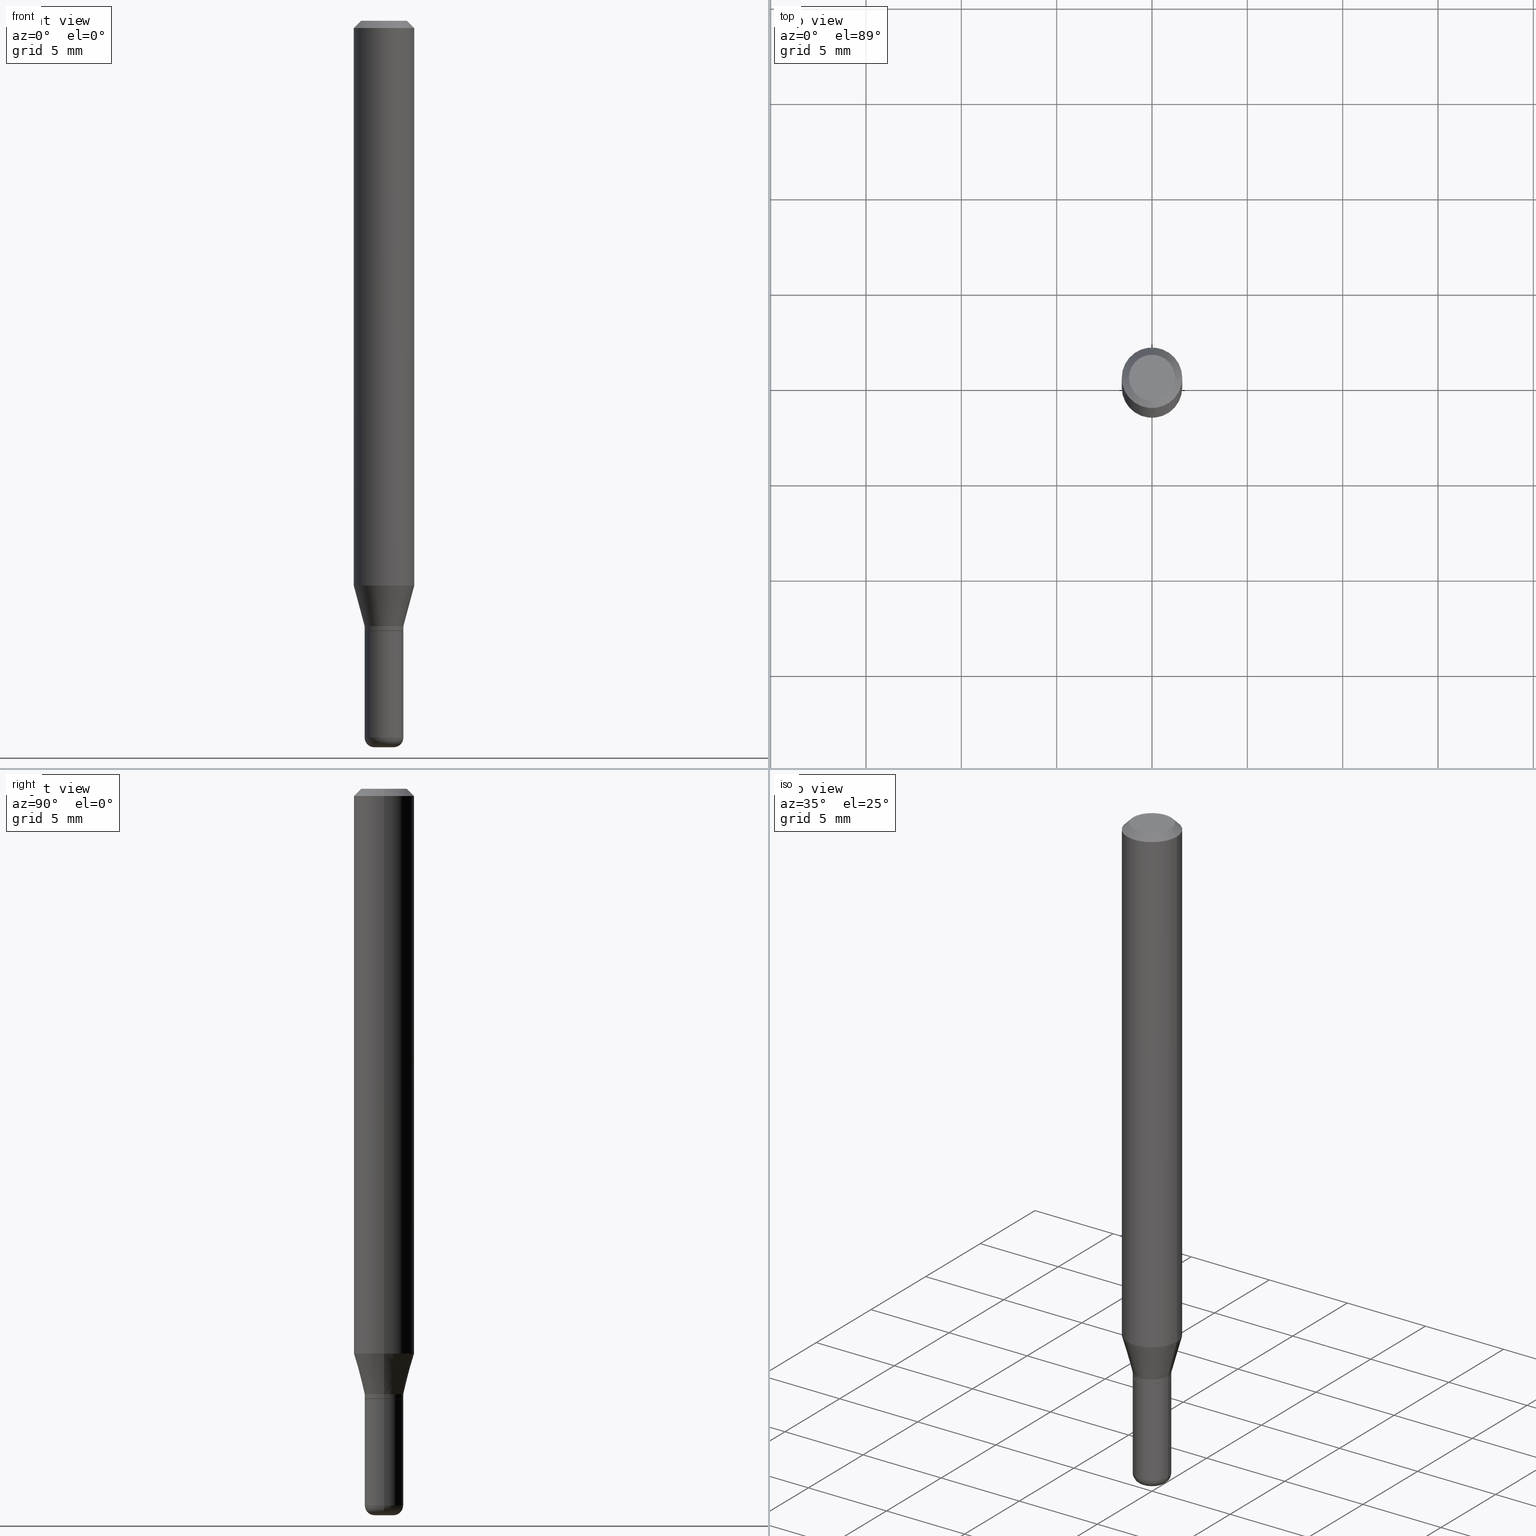
[diagram: canonical four-view strip — front | top / right | iso, engineering-drawing reading convention]
A machine part, canonical four-view strip (front | top / right | iso — engineering-drawing reading convention). The complete STEP part file that produces these views, byte-faithful:
ISO-10303-21;
HEADER;
FILE_DESCRIPTION (( 'STEP AP203' ),
    '1' );
FILE_NAME ('09191.STEP',
    '2024-02-29T23:12:11',
    ( '' ),
    ( '' ),
    'SwSTEP 2.0',
    'SolidWorks 2023',
    '' );
FILE_SCHEMA (( 'CONFIG_CONTROL_DESIGN' ));
ENDSEC;

DATA;
#1 = VECTOR ( 'NONE', #206, 39.37007874015748143 ) ;
#2 = DIRECTION ( 'NONE',  ( -2.445468806185136597E-29, 3.491481338843145583E-15, 1.000000000000000000 ) ) ;
#3 = CYLINDRICAL_SURFACE ( 'NONE', #416, 0.06250000000000000000 ) ;
#4 = CARTESIAN_POINT ( 'NONE',  ( -0.04000000000000000083, -4.080134579249892145E-15, -1.250000000000000000 ) ) ;
#5 = DATE_AND_TIME ( #78, #467 ) ;
#6 = LINE ( 'NONE', #209, #328 ) ;
#7 = FACE_OUTER_BOUND ( 'NONE', #155, .T. ) ;
#8 = PRODUCT_DEFINITION ( 'UNKNOWN', '', #347, #512 ) ;
#9 = CARTESIAN_POINT ( 'NONE',  ( -0.04000000000000003553, -4.499112339911069567E-15, -1.479999999999999982 ) ) ;
#10 = AXIS2_PLACEMENT_3D ( 'NONE', #53, #493, #92 ) ;
#11 = DIRECTION ( 'NONE',  ( 1.000000000000000000, -6.982962677686266711E-15, 4.876176775795936914E-29 ) ) ;
#12 = CC_DESIGN_APPROVAL ( #117, ( #379 ) ) ;
#13 = EDGE_CURVE ( 'NONE', #257, #452, #52, .T. ) ;
#14 = PLANE ( 'NONE',  #193 ) ;
#15 = CONICAL_SURFACE ( 'NONE', #317, 0.03950000000000001427, 0.7853981633972775267 ) ;
#16 = EDGE_CURVE ( 'NONE', #430, #267, #190, .T. ) ;
#17 = DIRECTION ( 'NONE',  ( 0.000000000000000000, 0.000000000000000000, 1.000000000000000000 ) ) ;
#18 = ORIENTED_EDGE ( 'NONE', *, *, #16, .T. ) ;
#19 = CYLINDRICAL_SURFACE ( 'NONE', #371, 0.04000000000000000777 ) ;
#20 = DIRECTION ( 'NONE',  ( -2.445468806185136597E-29, 3.491481338843145583E-15, 1.000000000000000000 ) ) ;
#21 = EDGE_CURVE ( 'NONE', #430, #399, #393, .T. ) ;
#22 = COORDINATED_UNIVERSAL_TIME_OFFSET ( 5, 0, .BEHIND. ) ;
#23 = ORIENTED_EDGE ( 'NONE', *, *, #215, .T. ) ;
#24 = EDGE_LOOP ( 'NONE', ( #28, #434 ) ) ;
#25 = EDGE_CURVE ( 'NONE', #33, #204, #372, .T. ) ;
#26 = DATE_AND_TIME ( #233, #43 ) ;
#27 = LINE ( 'NONE', #198, #309 ) ;
#28 = ORIENTED_EDGE ( 'NONE', *, *, #152, .F. ) ;
#29 = PERSON_AND_ORGANIZATION ( #256, #210 ) ;
#30 = DIRECTION ( 'NONE',  ( 1.000000000000000000, -6.982962677686259611E-15, 0.000000000000000000 ) ) ;
#31 = ORIENTED_EDGE ( 'NONE', *, *, #25, .T. ) ;
#32 = VECTOR ( 'NONE', #308, 39.37007874015748143 ) ;
#33 = VERTEX_POINT ( 'NONE', #266 ) ;
#34 = AXIS2_PLACEMENT_3D ( 'NONE', #344, #461, #96 ) ;
#35 = EDGE_CURVE ( 'NONE', #399, #430, #443, .T. ) ;
#36 = CIRCLE ( 'NONE', #134, 0.02000000000000000389 ) ;
#37 = COORDINATED_UNIVERSAL_TIME_OFFSET ( 5, 0, .BEHIND. ) ;
#38 = CC_DESIGN_DATE_AND_TIME_ASSIGNMENT ( #213, #403, ( #379 ) ) ;
#39 = EDGE_CURVE ( 'NONE', #484, #324, #241, .T. ) ;
#40 = DIRECTION ( 'NONE',  ( -2.445468806185136877E-29, 3.491481338843145188E-15, 1.000000000000000000 ) ) ;
#41 = CARTESIAN_POINT ( 'NONE',  ( -0.04750000000000000749, 3.578768372314221353E-16, 2.731847993664239060E-16 ) ) ;
#42 = CARTESIAN_POINT ( 'NONE',  ( 3.080067961390179490E-29, -4.397520746272941828E-15, -1.259500000000000064 ) ) ;
#43 = LOCAL_TIME ( 18, 12, 11.00000000000000000, #22 ) ;
#44 = AXIS2_PLACEMENT_3D ( 'NONE', #157, #407, #323 ) ;
#45 = SECURITY_CLASSIFICATION_LEVEL ( 'unclassified' ) ;
#46 = FACE_OUTER_BOUND ( 'NONE', #142, .T. ) ;
#47 = ORIENTED_EDGE ( 'NONE', *, *, #397, .T. ) ;
#48 = FACE_OUTER_BOUND ( 'NONE', #465, .T. ) ;
#49 = DIRECTION ( 'NONE',  ( 1.000000000000000000, -6.982962677686257244E-15, 0.000000000000000000 ) ) ;
#50 = EDGE_CURVE ( 'NONE', #355, #33, #234, .T. ) ;
#51 = AXIS2_PLACEMENT_3D ( 'NONE', #191, #501, #356 ) ;
#52 = CIRCLE ( 'NONE', #406, 0.03950000000000001427 ) ;
#53 = CARTESIAN_POINT ( 'NONE',  ( 3.619293833154002365E-29, -5.167392381487854879E-15, -1.479999999999999982 ) ) ;
#54 = CC_DESIGN_PERSON_AND_ORGANIZATION_ASSIGNMENT ( #513, #240, ( #347 ) ) ;
#55 = DIRECTION ( 'NONE',  ( 2.438088387897960049E-29, -3.491481338843145188E-15, -1.000000000000000000 ) ) ;
#56 = DIMENSIONAL_EXPONENTS ( 1.000000000000000000, 0.000000000000000000, 0.000000000000000000, 0.000000000000000000, 0.000000000000000000, 0.000000000000000000, 0.000000000000000000 ) ;
#57 = EDGE_CURVE ( 'NONE', #257, #281, #79, .T. ) ;
#58 = ORIENTED_EDGE ( 'NONE', *, *, #451, .F. ) ;
#59 =( GEOMETRIC_REPRESENTATION_CONTEXT ( 3 ) GLOBAL_UNCERTAINTY_ASSIGNED_CONTEXT ( ( #111 ) ) GLOBAL_UNIT_ASSIGNED_CONTEXT ( ( #473, #107, #195 ) ) REPRESENTATION_CONTEXT ( 'NONE', 'WORKASPACE' ) );
#60 = CARTESIAN_POINT ( 'NONE',  ( 0.000000000000000000, 0.000000000000000000, 0.000000000000000000 ) ) ;
#61 = FACE_OUTER_BOUND ( 'NONE', #77, .T. ) ;
#62 = APPROVAL ( #118, 'UNSPECIFIED' ) ;
#63 = DIRECTION ( 'NONE',  ( -2.445468806185136597E-29, 3.491481338843145583E-15, 1.000000000000000000 ) ) ;
#64 = VERTEX_POINT ( 'NONE', #366 ) ;
#65 = ORIENTED_EDGE ( 'NONE', *, *, #35, .T. ) ;
#66 = FACE_OUTER_BOUND ( 'NONE', #460, .T. ) ;
#67 = PERSON_AND_ORGANIZATION_ROLE ( 'design_owner' ) ;
#68 = ORIENTED_EDGE ( 'NONE', *, *, #334, .T. ) ;
#69 = CARTESIAN_POINT ( 'NONE',  ( -6.680649051745406845E-45, 9.538196290434862081E-31, 2.731847993664263218E-16 ) ) ;
#70 = MECHANICAL_CONTEXT ( 'NONE', #456, 'mechanical' ) ;
#71 = VERTEX_POINT ( 'NONE', #9 ) ;
#72 = CARTESIAN_POINT ( 'NONE',  ( 2.793185071074814439E-16, 0.03999999999999560157, -1.260000000000000453 ) ) ;
#73 = DIRECTION ( 'NONE',  ( -2.445468806185136597E-29, 3.491481338843145583E-15, 1.000000000000000000 ) ) ;
#74 = EDGE_LOOP ( 'NONE', ( #80, #276, #297, #182 ) ) ;
#75 = EDGE_CURVE ( 'NONE', #204, #420, #404, .T. ) ;
#76 = LINE ( 'NONE', #238, #441 ) ;
#77 = EDGE_LOOP ( 'NONE', ( #398, #271, #31, #158 ) ) ;
#78 = CALENDAR_DATE ( 2024, 29, 2 ) ;
#79 = LINE ( 'NONE', #84, #87 ) ;
#80 = ORIENTED_EDGE ( 'NONE', *, *, #350, .T. ) ;
#81 = AXIS2_PLACEMENT_3D ( 'NONE', #428, #229, #388 ) ;
#82 = ORIENTED_EDGE ( 'NONE', *, *, #280, .F. ) ;
#83 = EDGE_CURVE ( 'NONE', #316, #399, #6, .T. ) ;
#84 = CARTESIAN_POINT ( 'NONE',  ( 0.03950000000000001427, -4.675093512710971939E-15, -1.260000000000000231 ) ) ;
#85 = DIRECTION ( 'NONE',  ( -2.445468806185136597E-29, 3.491481338843145583E-15, 1.000000000000000000 ) ) ;
#86 = TOROIDAL_SURFACE ( 'NONE', #10, 0.02000000000000000042, 0.02000000000000003164 ) ;
#87 = VECTOR ( 'NONE', #331, 39.37007874015748143 ) ;
#88 = MANIFOLD_SOLID_BREP ( 'Body-Move/Copy2[2]', #163 ) ;
#89 = ORIENTED_EDGE ( 'NONE', *, *, #215, .F. ) ;
#90 = AXIS2_PLACEMENT_3D ( 'NONE', #42, #211, #49 ) ;
#91 = CYLINDRICAL_SURFACE ( 'NONE', #381, 0.04000000000000001471 ) ;
#92 = DIRECTION ( 'NONE',  ( 1.000000000000000000, -6.982962677686278543E-15, 4.883557194083116264E-29 ) ) ;
#93 = ADVANCED_FACE ( 'NONE', ( #360 ), #435, .T. ) ;
#94 = CARTESIAN_POINT ( 'NONE',  ( 3.056836007731421306E-29, -4.364351673553932471E-15, -1.250000000000000000 ) ) ;
#95 = VECTOR ( 'NONE', #131, 39.37007874015748143 ) ;
#96 = DIRECTION ( 'NONE',  ( 1.000000000000000000, -6.982962677686269077E-15, 0.000000000000000000 ) ) ;
#97 = FACE_OUTER_BOUND ( 'NONE', #391, .T. ) ;
#98 = DIRECTION ( 'NONE',  ( -2.445468806185136597E-29, 3.491481338843145583E-15, 1.000000000000000000 ) ) ;
#99 = APPLICATION_PROTOCOL_DEFINITION ( 'international standard', 'config_control_design', 1994, #456 ) ;
#100 = DIRECTION ( 'NONE',  ( -6.982962677686266711E-15, -1.000000000000000000, 3.491481338843145583E-15 ) ) ;
#101 = ADVANCED_FACE ( 'NONE', ( #165 ), #330, .T. ) ;
#102 = ORIENTED_EDGE ( 'NONE', *, *, #135, .T. ) ;
#103 = CARTESIAN_POINT ( 'NONE',  ( 0.000000000000000000, 0.000000000000000000, 0.000000000000000000 ) ) ;
#104 = EDGE_CURVE ( 'NONE', #71, #64, #447, .T. ) ;
#105 = ORIENTED_EDGE ( 'NONE', *, *, #400, .T. ) ;
#106 = VECTOR ( 'NONE', #503, 39.37007874015748143 ) ;
#107 =( NAMED_UNIT ( * ) PLANE_ANGLE_UNIT ( ) SI_UNIT ( $, .RADIAN. ) );
#108 = DIRECTION ( 'NONE',  ( -2.445468806185136597E-29, 3.491481338843145583E-15, 1.000000000000000000 ) ) ;
#109 = ADVANCED_FACE ( 'NONE', ( #46 ), #150, .T. ) ;
#110 = CARTESIAN_POINT ( 'NONE',  ( 0.000000000000000000, 0.000000000000000000, 0.000000000000000000 ) ) ;
#111 = UNCERTAINTY_MEASURE_WITH_UNIT (LENGTH_MEASURE( 1.000000000000000082E-05 ), #473, 'distance_accuracy_value', 'NONE');
#112 = APPROVAL ( #387, 'UNSPECIFIED' ) ;
#113 = CONICAL_SURFACE ( 'NONE', #160, 0.06250000000000000000, 0.7853981633974488341 ) ;
#114 = LOCAL_TIME ( 18, 12, 11.00000000000000000, #164 ) ;
#115 = ADVANCED_FACE ( 'NONE', ( #48 ), #91, .T. ) ;
#116 = DIRECTION ( 'NONE',  ( -2.445468806185136597E-29, 3.491481338843145583E-15, 1.000000000000000000 ) ) ;
#117 = APPROVAL ( #444, 'UNSPECIFIED' ) ;
#118 = APPROVAL_STATUS ( 'not_yet_approved' ) ;
#119 = PERSON_AND_ORGANIZATION ( #256, #210 ) ;
#120 = CARTESIAN_POINT ( 'NONE',  ( 0.000000000000000000, 0.000000000000000000, 0.000000000000000000 ) ) ;
#121 = PLANE ( 'NONE',  #332 ) ;
#122 = ADVANCED_FACE ( 'NONE', ( #250 ), #368, .T. ) ;
#123 = CARTESIAN_POINT ( 'NONE',  ( 3.081290695793272291E-29, -4.399266486942364120E-15, -1.260000000000000231 ) ) ;
#124 = ORIENTED_EDGE ( 'NONE', *, *, #178, .T. ) ;
#125 = CIRCLE ( 'NONE', #51, 0.06250000000000000000 ) ;
#126 = CLOSED_SHELL ( 'NONE', ( #93, #127, #506, #115, #427, #180 ) ) ;
#127 = ADVANCED_FACE ( 'NONE', ( #411 ), #177, .T. ) ;
#128 = EDGE_LOOP ( 'NONE', ( #216, #65, #18, #287 ) ) ;
#129 = DIRECTION ( 'NONE',  ( 0.7071067811865479058, -7.319954787623257623E-15, -0.7071067811865471286 ) ) ;
#130 = ORIENTED_EDGE ( 'NONE', *, *, #375, .F. ) ;
#131 = DIRECTION ( 'NONE',  ( -2.445468806185136877E-29, 3.491481338843145188E-15, 1.000000000000000000 ) ) ;
#132 = CARTESIAN_POINT ( 'NONE',  ( 3.080067961390179490E-29, -4.397520746272941828E-15, -1.259500000000000064 ) ) ;
#133 = CIRCLE ( 'NONE', #292, 0.02000000000000003511 ) ;
#134 = AXIS2_PLACEMENT_3D ( 'NONE', #197, #226, #230 ) ;
#135 = EDGE_CURVE ( 'NONE', #137, #484, #305, .T. ) ;
#136 = DIRECTION ( 'NONE',  ( -2.445468806185136597E-29, 3.491481338843145583E-15, 1.000000000000000000 ) ) ;
#137 = VERTEX_POINT ( 'NONE', #41 ) ;
#138 = FACE_OUTER_BOUND ( 'NONE', #74, .T. ) ;
#139 = DIRECTION ( 'NONE',  ( 1.000000000000000000, -6.982962677686266711E-15, 0.000000000000000000 ) ) ;
#140 = DIRECTION ( 'NONE',  ( -2.445468806185136597E-29, 3.491481338843145583E-15, 1.000000000000000000 ) ) ;
#141 = CC_DESIGN_PERSON_AND_ORGANIZATION_ASSIGNMENT ( #149, #67, ( #153 ) ) ;
#142 = EDGE_LOOP ( 'NONE', ( #278, #320, #105, #480 ) ) ;
#143 = DIRECTION ( 'NONE',  ( -2.445468806185136597E-29, 3.491481338843145583E-15, 1.000000000000000000 ) ) ;
#144 = APPROVAL_ROLE ( '' ) ;
#145 = PRODUCT_DEFINITION_SHAPE ( 'NONE', 'NONE',  #8 ) ;
#146 = ADVANCED_FACE ( 'NONE', ( #337 ), #3, .T. ) ;
#147 = EDGE_LOOP ( 'NONE', ( #362, #205, #425, #410 ) ) ;
#148 = AXIS2_PLACEMENT_3D ( 'NONE', #490, #302, #422 ) ;
#149 = PERSON_AND_ORGANIZATION ( #256, #210 ) ;
#150 = CONICAL_SURFACE ( 'NONE', #44, 0.06250000000000000000, 0.7853981633974488341 ) ;
#151 = EDGE_LOOP ( 'NONE', ( #299, #236, #498, #263 ) ) ;
#152 = EDGE_CURVE ( 'NONE', #33, #355, #36, .T. ) ;
#153 = PRODUCT ( '09191', '09191', '', ( #70 ) ) ;
#154 = CALENDAR_DATE ( 2024, 29, 2 ) ;
#155 = EDGE_LOOP ( 'NONE', ( #202, #82 ) ) ;
#156 = APPROVAL_DATE_TIME ( #159, #62 ) ;
#157 = CARTESIAN_POINT ( 'NONE',  ( 3.668203209277632395E-31, -5.237222008264614861E-17, -0.01499999999999970281 ) ) ;
#158 = ORIENTED_EDGE ( 'NONE', *, *, #259, .F. ) ;
#159 = DATE_AND_TIME ( #154, #114 ) ;
#160 = AXIS2_PLACEMENT_3D ( 'NONE', #351, #201, #342 ) ;
#161 = DIRECTION ( 'NONE',  ( 7.105427357601001859E-15, 1.000000000000000000, -3.491481338843145583E-15 ) ) ;
#162 = ORIENTED_EDGE ( 'NONE', *, *, #252, .T. ) ;
#163 = CLOSED_SHELL ( 'NONE', ( #306, #122, #109, #101, #207, #188, #146, #462, #429, #357, #289, #242 ) ) ;
#164 = COORDINATED_UNIVERSAL_TIME_OFFSET ( 5, 0, .BEHIND. ) ;
#165 = FACE_OUTER_BOUND ( 'NONE', #243, .T. ) ;
#166 = SHAPE_DEFINITION_REPRESENTATION ( #145, #187 ) ;
#167 = ORIENTED_EDGE ( 'NONE', *, *, #451, .T. ) ;
#168 = EDGE_CURVE ( 'NONE', #316, #281, #511, .T. ) ;
#169 = DIRECTION ( 'NONE',  ( -2.445468806185136597E-29, 3.491481338843145583E-15, 1.000000000000000000 ) ) ;
#170 = CIRCLE ( 'NONE', #454, 0.04000000000000003553 ) ;
#171 = DIRECTION ( 'NONE',  ( -1.000000000000000000, 7.105427357601009747E-15, 0.000000000000000000 ) ) ;
#172 = CC_DESIGN_APPROVAL ( #62, ( #347 ) ) ;
#173 = DIRECTION ( 'NONE',  ( -2.445468806185136877E-29, 3.491481338843145188E-15, 1.000000000000000000 ) ) ;
#174 = DIRECTION ( 'NONE',  ( -2.445468806185136597E-29, 3.491481338843145583E-15, 1.000000000000000000 ) ) ;
#175 = EDGE_LOOP ( 'NONE', ( #186, #167, #176, #439 ) ) ;
#176 = ORIENTED_EDGE ( 'NONE', *, *, #350, .F. ) ;
#177 = CYLINDRICAL_SURFACE ( 'NONE', #453, 0.04000000000000001471 ) ;
#178 = EDGE_CURVE ( 'NONE', #361, #137, #246, .T. ) ;
#179 = DIRECTION ( 'NONE',  ( -2.445468806185136597E-29, 3.491481338843145583E-15, 1.000000000000000000 ) ) ;
#180 = ADVANCED_FACE ( 'NONE', ( #219 ), #14, .F. ) ;
#181 = AXIS2_PLACEMENT_3D ( 'NONE', #94, #497, #426 ) ;
#182 = ORIENTED_EDGE ( 'NONE', *, *, #254, .F. ) ;
#183 = EDGE_LOOP ( 'NONE', ( #358, #367, #508, #321 ) ) ;
#184 = CARTESIAN_POINT ( 'NONE',  ( 2.851487196488747125E-29, -4.071167994173504722E-15, -1.166028856829700366 ) ) ;
#185 = CARTESIAN_POINT ( 'NONE',  ( 3.056836007731421306E-29, -4.364351673553932471E-15, -1.250000000000000000 ) ) ;
#186 = ORIENTED_EDGE ( 'NONE', *, *, #13, .T. ) ;
#187 = ADVANCED_BREP_SHAPE_REPRESENTATION ( '09191', ( #258, #88, #363 ), #59 ) ;
#188 = ADVANCED_FACE ( 'NONE', ( #382 ), #260, .T. ) ;
#189 = CARTESIAN_POINT ( 'NONE',  ( 3.619293833154002365E-29, -5.167392381487854879E-15, -1.479999999999999982 ) ) ;
#190 = LINE ( 'NONE', #346, #478 ) ;
#191 = CARTESIAN_POINT ( 'NONE',  ( 2.851487196488747125E-29, -4.071167994173504722E-15, -1.166028856829700366 ) ) ;
#192 = ORIENTED_EDGE ( 'NONE', *, *, #57, .T. ) ;
#193 = AXIS2_PLACEMENT_3D ( 'NONE', #338, #495, #466 ) ;
#194 = LINE ( 'NONE', #349, #106 ) ;
#195 =( NAMED_UNIT ( * ) SI_UNIT ( $, .STERADIAN. ) SOLID_ANGLE_UNIT ( ) );
#196 = CARTESIAN_POINT ( 'NONE',  ( 3.668203209277632395E-31, -5.237222008264614861E-17, -0.01499999999999970281 ) ) ;
#197 = CARTESIAN_POINT ( 'NONE',  ( 3.668203209277704895E-29, -5.237222008264718177E-15, -1.500000000000000222 ) ) ;
#198 = CARTESIAN_POINT ( 'NONE',  ( 0.06250000000000000000, -4.811533449433669144E-16, -0.01499999999999970281 ) ) ;
#199 = APPROVAL_DATE_TIME ( #26, #112 ) ;
#200 = ORIENTED_EDGE ( 'NONE', *, *, #375, .T. ) ;
#201 = DIRECTION ( 'NONE',  ( 2.445468806185136597E-29, -3.491481338843145583E-15, -1.000000000000000000 ) ) ;
#202 = ORIENTED_EDGE ( 'NONE', *, *, #13, .F. ) ;
#203 = AXIS2_PLACEMENT_3D ( 'NONE', #189, #143, #472 ) ;
#204 = VERTEX_POINT ( 'NONE', #255 ) ;
#205 = ORIENTED_EDGE ( 'NONE', *, *, #318, .T. ) ;
#206 = DIRECTION ( 'NONE',  ( -2.445468806185136877E-29, 3.491481338843145188E-15, 1.000000000000000000 ) ) ;
#207 = ADVANCED_FACE ( 'NONE', ( #459 ), #220, .T. ) ;
#208 = ORIENTED_EDGE ( 'NONE', *, *, #252, .F. ) ;
#209 = CARTESIAN_POINT ( 'NONE',  ( -0.04000000000000000777, 2.842170943040401296E-16, -1.967574036101962859E-30 ) ) ;
#210 = ORGANIZATION ( 'UNSPECIFIED', 'UNSPECIFIED', '' ) ;
#211 = DIRECTION ( 'NONE',  ( -2.445468806185136597E-29, 3.491481338843145583E-15, 1.000000000000000000 ) ) ;
#212 = AXIS2_PLACEMENT_3D ( 'NONE', #120, #85, #288 ) ;
#213 = DATE_AND_TIME ( #319, #274 ) ;
#214 = DIRECTION ( 'NONE',  ( -2.438088387897960049E-29, 3.491481338843145188E-15, 1.000000000000000000 ) ) ;
#215 = EDGE_CURVE ( 'NONE', #267, #380, #125, .T. ) ;
#216 = ORIENTED_EDGE ( 'NONE', *, *, #334, .F. ) ;
#217 = DIRECTION ( 'NONE',  ( 1.000000000000000000, -6.982962677686259611E-15, 0.000000000000000000 ) ) ;
#218 = DIRECTION ( 'NONE',  ( -1.000000000000000000, 6.982962677686265922E-15, -4.876176775795935793E-29 ) ) ;
#219 = FACE_OUTER_BOUND ( 'NONE', #24, .T. ) ;
#220 = CONICAL_SURFACE ( 'NONE', #181, 0.04000000000000000083, 0.2617993877991495189 ) ;
#221 = CIRCLE ( 'NONE', #412, 0.06250000000000000000 ) ;
#222 = APPROVAL_PERSON_ORGANIZATION ( #119, #117, #365 ) ;
#223 = EDGE_CURVE ( 'NONE', #361, #324, #27, .T. ) ;
#224 = DIRECTION ( 'NONE',  ( 1.000000000000000000, -6.982962677686266711E-15, 4.852736867747365086E-29 ) ) ;
#225 = DIRECTION ( 'NONE',  ( -1.000000000000000000, 6.982962677686265922E-15, -4.876176775795935793E-29 ) ) ;
#226 = DIRECTION ( 'NONE',  ( -2.445468806185136597E-29, 3.491481338843145583E-15, 1.000000000000000000 ) ) ;
#227 = CARTESIAN_POINT ( 'NONE',  ( 3.081290695793272291E-29, -4.399266486942364120E-15, -1.260000000000000231 ) ) ;
#228 = PERSON_AND_ORGANIZATION ( #256, #210 ) ;
#229 = DIRECTION ( 'NONE',  ( -2.445468806185136597E-29, 3.491481338843145583E-15, 1.000000000000000000 ) ) ;
#230 = DIRECTION ( 'NONE',  ( 1.000000000000000000, -6.982962677686282488E-15, 0.000000000000000000 ) ) ;
#231 = ORIENTED_EDGE ( 'NONE', *, *, #259, .T. ) ;
#232 = CIRCLE ( 'NONE', #518, 0.04750000000000000749 ) ;
#233 = CALENDAR_DATE ( 2024, 29, 2 ) ;
#234 = CIRCLE ( 'NONE', #450, 0.02000000000000000389 ) ;
#235 = COORDINATED_UNIVERSAL_TIME_OFFSET ( 5, 0, .BEHIND. ) ;
#236 = ORIENTED_EDGE ( 'NONE', *, *, #104, .T. ) ;
#237 = LINE ( 'NONE', #437, #449 ) ;
#238 = CARTESIAN_POINT ( 'NONE',  ( 0.06250000000000000000, -4.364351673553916694E-16, 3.047610484872459871E-30 ) ) ;
#239 = CIRCLE ( 'NONE', #90, 0.04000000000000001471 ) ;
#240 = PERSON_AND_ORGANIZATION_ROLE ( 'design_supplier' ) ;
#241 = CIRCLE ( 'NONE', #502, 0.06250000000000000000 ) ;
#242 = ADVANCED_FACE ( 'NONE', ( #66 ), #19, .T. ) ;
#243 = EDGE_LOOP ( 'NONE', ( #23, #445, #348, #329 ) ) ;
#244 = DIRECTION ( 'NONE',  ( -0.2588190451025207950, 5.211531920934546309E-15, 0.9659258262890682012 ) ) ;
#245 = CARTESIAN_POINT ( 'NONE',  ( -0.04000000000000001471, 2.842170943040401789E-16, -1.967574036101963210E-30 ) ) ;
#246 = CIRCLE ( 'NONE', #510, 0.04750000000000000749 ) ;
#247 = AXIS2_PLACEMENT_3D ( 'NONE', #432, #136, #394 ) ;
#248 = DIRECTION ( 'NONE',  ( 1.000000000000000000, -6.982962677686278543E-15, 4.883557194083116264E-29 ) ) ;
#249 = CC_DESIGN_PERSON_AND_ORGANIZATION_ASSIGNMENT ( #322, #402, ( #379 ) ) ;
#250 = FACE_OUTER_BOUND ( 'NONE', #175, .T. ) ;
#251 = AXIS2_PLACEMENT_3D ( 'NONE', #72, #262, #225 ) ;
#252 = EDGE_CURVE ( 'NONE', #137, #361, #232, .T. ) ;
#253 = PLANE ( 'NONE',  #390 ) ;
#254 = EDGE_CURVE ( 'NONE', #281, #430, #353, .T. ) ;
#255 = CARTESIAN_POINT ( 'NONE',  ( 0.04000000000000003553, -5.446710888595306494E-15, -1.479999999999999982 ) ) ;
#256 = PERSON ( 'UNSPECIFIED', 'UNSPECIFIED', 'UNSPECIFIED', ('UNSPECIFIED'), ('UNSPECIFIED'), ('UNSPECIFIED') ) ;
#257 = VERTEX_POINT ( 'NONE', #265 ) ;
#258 = MANIFOLD_SOLID_BREP ( 'Body-Move/Copy2[1]', #126 ) ;
#259 = EDGE_CURVE ( 'NONE', #71, #204, #494, .T. ) ;
#260 = CONICAL_SURFACE ( 'NONE', #339, 0.04000000000000000083, 0.2617993877991495189 ) ;
#261 = FACE_OUTER_BOUND ( 'NONE', #509, .T. ) ;
#262 = DIRECTION ( 'NONE',  ( 2.438088387897960049E-29, -3.491481338843145188E-15, -1.000000000000000000 ) ) ;
#263 = ORIENTED_EDGE ( 'NONE', *, *, #75, .F. ) ;
#264 = DIRECTION ( 'NONE',  ( -2.445468806185136597E-29, 3.491481338843145583E-15, 1.000000000000000000 ) ) ;
#265 = CARTESIAN_POINT ( 'NONE',  ( 0.03950000000000001427, -4.675093512710971939E-15, -1.260000000000000231 ) ) ;
#266 = CARTESIAN_POINT ( 'NONE',  ( 0.02000000000000000389, -5.376881261818443984E-15, -1.500000000000000222 ) ) ;
#267 = VERTEX_POINT ( 'NONE', #457 ) ;
#268 = DIRECTION ( 'NONE',  ( -2.445468806185136597E-29, 3.491481338843145583E-15, 1.000000000000000000 ) ) ;
#269 = LENGTH_MEASURE_WITH_UNIT ( LENGTH_MEASURE( 0.02539999999999999897 ), #464 );
#270 = CARTESIAN_POINT ( 'NONE',  ( -6.680649051745406845E-45, 9.538196290434862081E-31, 2.731847993664263218E-16 ) ) ;
#271 = ORIENTED_EDGE ( 'NONE', *, *, #50, .T. ) ;
#272 = CC_DESIGN_PERSON_AND_ORGANIZATION_ASSIGNMENT ( #440, #327, ( #347 ) ) ;
#273 = APPROVAL_PERSON_ORGANIZATION ( #228, #112, #144 ) ;
#274 = LOCAL_TIME ( 18, 12, 11.00000000000000000, #37 ) ;
#275 = DATE_AND_TIME ( #475, #326 ) ;
#276 = ORIENTED_EDGE ( 'NONE', *, *, #83, .T. ) ;
#277 = APPLICATION_PROTOCOL_DEFINITION ( 'international standard', 'config_control_design', 1994, #486 ) ;
#278 = ORIENTED_EDGE ( 'NONE', *, *, #178, .F. ) ;
#279 = APPROVAL_DATE_TIME ( #5, #117 ) ;
#280 = EDGE_CURVE ( 'NONE', #452, #257, #378, .T. ) ;
#281 = VERTEX_POINT ( 'NONE', #314 ) ;
#282 = CIRCLE ( 'NONE', #483, 0.04000000000000000083 ) ;
#283 = AXIS2_PLACEMENT_3D ( 'NONE', #487, #2, #248 ) ;
#284 = ORIENTED_EDGE ( 'NONE', *, *, #280, .T. ) ;
#285 = DIRECTION ( 'NONE',  ( 1.000000000000000000, -6.982962677686282488E-15, 0.000000000000000000 ) ) ;
#286 = LINE ( 'NONE', #4, #401 ) ;
#287 = ORIENTED_EDGE ( 'NONE', *, *, #488, .F. ) ;
#288 = DIRECTION ( 'NONE',  ( 1.000000000000000000, -6.982962677686266711E-15, 4.876176775795935793E-29 ) ) ;
#289 = ADVANCED_FACE ( 'NONE', ( #261 ), #15, .T. ) ;
#290 = APPROVAL_ROLE ( '' ) ;
#291 = CARTESIAN_POINT ( 'NONE',  ( 0.04000000000000001471, -2.793185071074507769E-16, 1.950470710318375438E-30 ) ) ;
#292 = AXIS2_PLACEMENT_3D ( 'NONE', #369, #161, #171 ) ;
#293 = CC_DESIGN_APPROVAL ( #112, ( #8 ) ) ;
#294 = CARTESIAN_POINT ( 'NONE',  ( 3.081290695793272291E-29, -4.399266486942364120E-15, -1.260000000000000231 ) ) ;
#295 = EDGE_CURVE ( 'NONE', #204, #71, #170, .T. ) ;
#296 = CARTESIAN_POINT ( 'NONE',  ( 0.04750000000000000749, -4.035134999187568762E-16, 2.731847993664288856E-16 ) ) ;
#297 = ORIENTED_EDGE ( 'NONE', *, *, #21, .F. ) ;
#298 = DIRECTION ( 'NONE',  ( -2.445468806185136597E-29, 3.491481338843145583E-15, 1.000000000000000000 ) ) ;
#299 = ORIENTED_EDGE ( 'NONE', *, *, #295, .T. ) ;
#300 = EDGE_CURVE ( 'NONE', #380, #484, #194, .T. ) ;
#301 = CARTESIAN_POINT ( 'NONE',  ( 0.04000000000000000777, -2.793185071074507276E-16, 1.950470710318374738E-30 ) ) ;
#302 = DIRECTION ( 'NONE',  ( -2.445468806185136597E-29, 3.491481338843145583E-15, 1.000000000000000000 ) ) ;
#303 = DIRECTION ( 'NONE',  ( 1.000000000000000000, -6.982962677686271444E-15, 0.000000000000000000 ) ) ;
#304 = ORIENTED_EDGE ( 'NONE', *, *, #35, .F. ) ;
#305 = LINE ( 'NONE', #336, #32 ) ;
#306 = ADVANCED_FACE ( 'NONE', ( #138 ), #311, .T. ) ;
#307 = CARTESIAN_POINT ( 'NONE',  ( -0.03950000000000001427, -4.115952879143013491E-15, -1.260000000000000231 ) ) ;
#308 = DIRECTION ( 'NONE',  ( -0.7071067811865479058, 2.468850131082261005E-15, -0.7071067811865471286 ) ) ;
#309 = VECTOR ( 'NONE', #129, 39.37007874015748143 ) ;
#310 = CARTESIAN_POINT ( 'NONE',  ( 3.619293833154002365E-29, -5.167392381487854879E-15, -1.479999999999999982 ) ) ;
#311 = CYLINDRICAL_SURFACE ( 'NONE', #463, 0.04000000000000000777 ) ;
#312 = DIRECTION ( 'NONE',  ( 1.000000000000000000, -6.982962677686269077E-15, 0.000000000000000000 ) ) ;
#313 = CC_DESIGN_PERSON_AND_ORGANIZATION_ASSIGNMENT ( #354, #315, ( #8 ) ) ;
#314 = CARTESIAN_POINT ( 'NONE',  ( 0.04000000000000001471, -4.676839253380393443E-15, -1.259500000000000064 ) ) ;
#315 = PERSON_AND_ORGANIZATION_ROLE ( 'creator' ) ;
#316 = VERTEX_POINT ( 'NONE', #409 ) ;
#317 = AXIS2_PLACEMENT_3D ( 'NONE', #227, #63, #468 ) ;
#318 = EDGE_CURVE ( 'NONE', #355, #71, #133, .T. ) ;
#319 = CALENDAR_DATE ( 2024, 29, 2 ) ;
#320 = ORIENTED_EDGE ( 'NONE', *, *, #223, .T. ) ;
#321 = ORIENTED_EDGE ( 'NONE', *, *, #39, .F. ) ;
#322 = PERSON_AND_ORGANIZATION ( #256, #210 ) ;
#323 = DIRECTION ( 'NONE',  ( -1.000000000000000000, 6.982962677686266711E-15, 0.000000000000000000 ) ) ;
#324 = VERTEX_POINT ( 'NONE', #517 ) ;
#325 = AXIS2_PLACEMENT_3D ( 'NONE', #132, #140, #376 ) ;
#326 = LOCAL_TIME ( 18, 12, 11.00000000000000000, #235 ) ;
#327 = PERSON_AND_ORGANIZATION_ROLE ( 'creator' ) ;
#328 = VECTOR ( 'NONE', #40, 39.37007874015748143 ) ;
#329 = ORIENTED_EDGE ( 'NONE', *, *, #385, .F. ) ;
#330 = CYLINDRICAL_SURFACE ( 'NONE', #212, 0.06250000000000000000 ) ;
#331 = DIRECTION ( 'NONE',  ( 0.7071067811864267805, -2.468850131080992517E-15, 0.7071067811866682540 ) ) ;
#332 = AXIS2_PLACEMENT_3D ( 'NONE', #294, #214, #333 ) ;
#333 = DIRECTION ( 'NONE',  ( 1.000000000000000000, -6.982962677686265922E-15, 4.876176775795935793E-29 ) ) ;
#334 = EDGE_CURVE ( 'NONE', #399, #380, #286, .T. ) ;
#335 = DIRECTION ( 'NONE',  ( -2.445468806185136597E-29, 3.491481338843145583E-15, 1.000000000000000000 ) ) ;
#336 = CARTESIAN_POINT ( 'NONE',  ( -0.06250000000000000000, 3.840629472727455270E-16, -0.01499999999999970281 ) ) ;
#337 = FACE_OUTER_BOUND ( 'NONE', #183, .T. ) ;
#338 = CARTESIAN_POINT ( 'NONE',  ( 3.582686580359766038E-29, -5.359686688179453325E-15, -1.500000000000000222 ) ) ;
#339 = AXIS2_PLACEMENT_3D ( 'NONE', #185, #298, #303 ) ;
#340 = EDGE_LOOP ( 'NONE', ( #485, #208, #102, #359 ) ) ;
#341 = DIRECTION ( 'NONE',  ( 1.000000000000000000, -6.982962677686269077E-15, 0.000000000000000000 ) ) ;
#342 = DIRECTION ( 'NONE',  ( -1.000000000000000000, 6.982962677686266711E-15, 0.000000000000000000 ) ) ;
#343 = ORIENTED_EDGE ( 'NONE', *, *, #104, .F. ) ;
#344 = CARTESIAN_POINT ( 'NONE',  ( 3.081290695793272291E-29, -4.399266486942364120E-15, -1.260000000000000231 ) ) ;
#345 = DIRECTION ( 'NONE',  ( -0.7071067811864267805, 7.493145998869918709E-15, 0.7071067811866682540 ) ) ;
#346 = CARTESIAN_POINT ( 'NONE',  ( 0.04000000000000000083, -4.643670180661383298E-15, -1.250000000000000000 ) ) ;
#347 = PRODUCT_DEFINITION_FORMATION_WITH_SPECIFIED_SOURCE ( 'ANY', '', #153, .NOT_KNOWN. ) ;
#348 = ORIENTED_EDGE ( 'NONE', *, *, #400, .F. ) ;
#349 = CARTESIAN_POINT ( 'NONE',  ( -0.06250000000000000000, 4.440892098500626162E-16, -3.074334431409316114E-30 ) ) ;
#350 = EDGE_CURVE ( 'NONE', #281, #316, #239, .T. ) ;
#351 = CARTESIAN_POINT ( 'NONE',  ( 3.668203209277632395E-31, -5.237222008264614861E-17, -0.01499999999999970281 ) ) ;
#352 = DIRECTION ( 'NONE',  ( 1.000000000000000000, -6.982962677686272233E-15, 0.000000000000000000 ) ) ;
#353 = LINE ( 'NONE', #301, #95 ) ;
#354 = PERSON_AND_ORGANIZATION ( #256, #210 ) ;
#355 = VERTEX_POINT ( 'NONE', #448 ) ;
#356 = DIRECTION ( 'NONE',  ( 1.000000000000000000, -6.982962677686262766E-15, 0.000000000000000000 ) ) ;
#357 = ADVANCED_FACE ( 'NONE', ( #7 ), #121, .F. ) ;
#358 = ORIENTED_EDGE ( 'NONE', *, *, #300, .F. ) ;
#359 = ORIENTED_EDGE ( 'NONE', *, *, #39, .T. ) ;
#360 = FACE_OUTER_BOUND ( 'NONE', #147, .T. ) ;
#361 = VERTEX_POINT ( 'NONE', #296 ) ;
#362 = ORIENTED_EDGE ( 'NONE', *, *, #152, .T. ) ;
#363 = AXIS2_PLACEMENT_3D ( 'NONE', #110, #17, #431 ) ;
#364 = DIRECTION ( 'NONE',  ( 1.000000000000000000, -6.982962677686266711E-15, 4.876176775795935793E-29 ) ) ;
#365 = APPROVAL_ROLE ( '' ) ;
#366 = CARTESIAN_POINT ( 'NONE',  ( -0.04000000000000000083, -4.499112339911069567E-15, -1.260000000000000231 ) ) ;
#367 = ORIENTED_EDGE ( 'NONE', *, *, #488, .T. ) ;
#368 = CONICAL_SURFACE ( 'NONE', #474, 0.03950000000000001427, 0.7853981633972775267 ) ;
#369 = CARTESIAN_POINT ( 'NONE',  ( -0.02000000000000000042, -5.025283834335834715E-15, -1.479999999999999982 ) ) ;
#370 = EDGE_LOOP ( 'NONE', ( #162, #124 ) ) ;
#371 = AXIS2_PLACEMENT_3D ( 'NONE', #60, #499, #392 ) ;
#372 = CIRCLE ( 'NONE', #415, 0.02000000000000003511 ) ;
#373 = CARTESIAN_POINT ( 'NONE',  ( 0.000000000000000000, 0.000000000000000000, 0.000000000000000000 ) ) ;
#374 = CARTESIAN_POINT ( 'NONE',  ( 0.04000000000000000083, -4.678584994049814947E-15, -1.260000000000000231 ) ) ;
#375 = EDGE_CURVE ( 'NONE', #64, #420, #421, .T. ) ;
#376 = DIRECTION ( 'NONE',  ( 1.000000000000000000, -6.982962677686257244E-15, 0.000000000000000000 ) ) ;
#377 = DIRECTION ( 'NONE',  ( -2.445468806185136597E-29, 3.491481338843145583E-15, 1.000000000000000000 ) ) ;
#378 = CIRCLE ( 'NONE', #34, 0.03950000000000001427 ) ;
#379 = SECURITY_CLASSIFICATION ( '', '', #45 ) ;
#380 = VERTEX_POINT ( 'NONE', #438 ) ;
#381 = AXIS2_PLACEMENT_3D ( 'NONE', #373, #419, #11 ) ;
#382 = FACE_OUTER_BOUND ( 'NONE', #128, .T. ) ;
#383 = CARTESIAN_POINT ( 'NONE',  ( 0.04000000000000000083, -4.643670180661383298E-15, -1.250000000000000000 ) ) ;
#384 = CARTESIAN_POINT ( 'NONE',  ( 3.081290695793272291E-29, -4.399266486942364120E-15, -1.260000000000000231 ) ) ;
#385 = EDGE_CURVE ( 'NONE', #267, #324, #76, .T. ) ;
#386 = DIRECTION ( 'NONE',  ( 1.000000000000000000, -6.982962677686277755E-15, 0.000000000000000000 ) ) ;
#387 = APPROVAL_STATUS ( 'not_yet_approved' ) ;
#388 = DIRECTION ( 'NONE',  ( 1.000000000000000000, -6.982962677686271444E-15, 0.000000000000000000 ) ) ;
#389 = DIRECTION ( 'NONE',  ( 1.000000000000000000, -6.982962677686266711E-15, 4.852736867747365086E-29 ) ) ;
#390 = AXIS2_PLACEMENT_3D ( 'NONE', #418, #55, #218 ) ;
#391 = EDGE_LOOP ( 'NONE', ( #47, #200 ) ) ;
#392 = DIRECTION ( 'NONE',  ( 1.000000000000000000, -6.982962677686266711E-15, 4.876176775795935793E-29 ) ) ;
#393 = CIRCLE ( 'NONE', #247, 0.04000000000000000083 ) ;
#394 = DIRECTION ( 'NONE',  ( 1.000000000000000000, -6.982962677686271444E-15, 0.000000000000000000 ) ) ;
#395 = ORIENTED_EDGE ( 'NONE', *, *, #21, .T. ) ;
#396 = FACE_OUTER_BOUND ( 'NONE', #340, .T. ) ;
#397 = EDGE_CURVE ( 'NONE', #420, #64, #282, .T. ) ;
#398 = ORIENTED_EDGE ( 'NONE', *, *, #318, .F. ) ;
#399 = VERTEX_POINT ( 'NONE', #491 ) ;
#400 = EDGE_CURVE ( 'NONE', #324, #484, #477, .T. ) ;
#401 = VECTOR ( 'NONE', #244, 39.37007874015748854 ) ;
#402 = PERSON_AND_ORGANIZATION_ROLE ( 'classification_officer' ) ;
#403 = DATE_TIME_ROLE ( 'classification_date' ) ;
#404 = LINE ( 'NONE', #291, #1 ) ;
#405 = DIRECTION ( 'NONE',  ( -2.445468806185136877E-29, 3.491481338843145188E-15, 1.000000000000000000 ) ) ;
#406 = AXIS2_PLACEMENT_3D ( 'NONE', #384, #20, #312 ) ;
#407 = DIRECTION ( 'NONE',  ( 2.445468806185136597E-29, -3.491481338843145583E-15, -1.000000000000000000 ) ) ;
#408 = CARTESIAN_POINT ( 'NONE',  ( 0.000000000000000000, 0.000000000000000000, 0.000000000000000000 ) ) ;
#409 = CARTESIAN_POINT ( 'NONE',  ( -0.04000000000000001471, -4.113303651968902290E-15, -1.259500000000000064 ) ) ;
#410 = ORIENTED_EDGE ( 'NONE', *, *, #25, .F. ) ;
#411 = FACE_OUTER_BOUND ( 'NONE', #151, .T. ) ;
#412 = AXIS2_PLACEMENT_3D ( 'NONE', #184, #73, #504 ) ;
#413 = CC_DESIGN_SECURITY_CLASSIFICATION ( #379, ( #347 ) ) ;
#414 = FACE_OUTER_BOUND ( 'NONE', #370, .T. ) ;
#415 = AXIS2_PLACEMENT_3D ( 'NONE', #470, #100, #352 ) ;
#416 = AXIS2_PLACEMENT_3D ( 'NONE', #408, #174, #492 ) ;
#417 = CARTESIAN_POINT ( 'NONE',  ( 0.000000000000000000, 0.000000000000000000, 0.000000000000000000 ) ) ;
#418 = CARTESIAN_POINT ( 'NONE',  ( 3.316907271900976589E-16, 0.04750000000000000749, -2.925296391183627249E-17 ) ) ;
#419 = DIRECTION ( 'NONE',  ( -2.445468806185136597E-29, 3.491481338843145583E-15, 1.000000000000000000 ) ) ;
#420 = VERTEX_POINT ( 'NONE', #374 ) ;
#421 = CIRCLE ( 'NONE', #433, 0.04000000000000000083 ) ;
#422 = DIRECTION ( 'NONE',  ( 1.000000000000000000, -6.982962677686266711E-15, 0.000000000000000000 ) ) ;
#423 = ORIENTED_EDGE ( 'NONE', *, *, #254, .T. ) ;
#424 = CARTESIAN_POINT ( 'NONE',  ( -0.06250000000000000000, -1.617680897278012693E-15, -0.01499999999999970281 ) ) ;
#425 = ORIENTED_EDGE ( 'NONE', *, *, #295, .F. ) ;
#426 = DIRECTION ( 'NONE',  ( 1.000000000000000000, -6.982962677686271444E-15, 0.000000000000000000 ) ) ;
#427 = ADVANCED_FACE ( 'NONE', ( #61 ), #86, .T. ) ;
#428 = CARTESIAN_POINT ( 'NONE',  ( 3.056836007731421306E-29, -4.364351673553932471E-15, -1.250000000000000000 ) ) ;
#429 = ADVANCED_FACE ( 'NONE', ( #414 ), #253, .F. ) ;
#430 = VERTEX_POINT ( 'NONE', #383 ) ;
#431 = DIRECTION ( 'NONE',  ( 1.000000000000000000, 0.000000000000000000, 0.000000000000000000 ) ) ;
#432 = CARTESIAN_POINT ( 'NONE',  ( 3.056836007731421306E-29, -4.364351673553932471E-15, -1.250000000000000000 ) ) ;
#433 = AXIS2_PLACEMENT_3D ( 'NONE', #476, #108, #30 ) ;
#434 = ORIENTED_EDGE ( 'NONE', *, *, #50, .F. ) ;
#435 = TOROIDAL_SURFACE ( 'NONE', #283, 0.02000000000000000042, 0.02000000000000003164 ) ;
#436 = DATE_TIME_ROLE ( 'creation_date' ) ;
#437 = CARTESIAN_POINT ( 'NONE',  ( -0.03950000000000001427, -4.118602106317124692E-15, -1.260000000000000231 ) ) ;
#438 = CARTESIAN_POINT ( 'NONE',  ( -0.06250000000000000000, -3.627078784323442106E-15, -1.166028856829700366 ) ) ;
#439 = ORIENTED_EDGE ( 'NONE', *, *, #57, .F. ) ;
#440 = PERSON_AND_ORGANIZATION ( #256, #210 ) ;
#442 = ORIENTED_EDGE ( 'NONE', *, *, #168, .F. ) ;
#441 = VECTOR ( 'NONE', #173, 39.37007874015748143 ) ;
#443 = CIRCLE ( 'NONE', #81, 0.04000000000000000083 ) ;
#444 = APPROVAL_STATUS ( 'not_yet_approved' ) ;
#445 = ORIENTED_EDGE ( 'NONE', *, *, #300, .T. ) ;
#446 = CARTESIAN_POINT ( 'NONE',  ( 3.668203209277704895E-29, -5.237222008264718177E-15, -1.500000000000000222 ) ) ;
#447 = LINE ( 'NONE', #245, #455 ) ;
#448 = CARTESIAN_POINT ( 'NONE',  ( -0.02000000000000000389, -4.989144374148256283E-15, -1.500000000000000222 ) ) ;
#449 = VECTOR ( 'NONE', #345, 39.37007874015748143 ) ;
#450 = AXIS2_PLACEMENT_3D ( 'NONE', #446, #116, #285 ) ;
#451 = EDGE_CURVE ( 'NONE', #452, #316, #237, .T. ) ;
#452 = VERTEX_POINT ( 'NONE', #307 ) ;
#453 = AXIS2_PLACEMENT_3D ( 'NONE', #417, #179, #496 ) ;
#454 = AXIS2_PLACEMENT_3D ( 'NONE', #310, #98, #386 ) ;
#455 = VECTOR ( 'NONE', #405, 39.37007874015748143 ) ;
#456 = APPLICATION_CONTEXT ( 'configuration controlled 3d designs of mechanical parts and assemblies' ) ;
#457 = CARTESIAN_POINT ( 'NONE',  ( 0.06250000000000000000, -4.507603161528897181E-15, -1.166028856829700366 ) ) ;
#458 = CARTESIAN_POINT ( 'NONE',  ( 3.081290695793272291E-29, -4.399266486942364120E-15, -1.260000000000000231 ) ) ;
#459 = FACE_OUTER_BOUND ( 'NONE', #481, .T. ) ;
#460 = EDGE_LOOP ( 'NONE', ( #479, #515, #423, #304 ) ) ;
#461 = DIRECTION ( 'NONE',  ( -2.445468806185136597E-29, 3.491481338843145583E-15, 1.000000000000000000 ) ) ;
#462 = ADVANCED_FACE ( 'NONE', ( #396 ), #113, .T. ) ;
#463 = AXIS2_PLACEMENT_3D ( 'NONE', #103, #268, #364 ) ;
#464 =( LENGTH_UNIT ( ) NAMED_UNIT ( * ) SI_UNIT ( $, .METRE. ) );
#465 = EDGE_LOOP ( 'NONE', ( #343, #231, #514, #130 ) ) ;
#466 = DIRECTION ( 'NONE',  ( 1.000000000000000000, -6.982962677686265922E-15, 4.876176775795935793E-29 ) ) ;
#467 = LOCAL_TIME ( 18, 12, 11.00000000000000000, #482 ) ;
#468 = DIRECTION ( 'NONE',  ( 1.000000000000000000, -6.982962677686269077E-15, 0.000000000000000000 ) ) ;
#469 = PLANE ( 'NONE',  #251 ) ;
#470 = CARTESIAN_POINT ( 'NONE',  ( 0.02000000000000000042, -5.307051635041580686E-15, -1.479999999999999982 ) ) ;
#471 = ORIENTED_EDGE ( 'NONE', *, *, #16, .F. ) ;
#472 = DIRECTION ( 'NONE',  ( 1.000000000000000000, -6.982962677686277755E-15, 0.000000000000000000 ) ) ;
#473 =( CONVERSION_BASED_UNIT ( 'INCH', #269 ) LENGTH_UNIT ( ) NAMED_UNIT ( #56 ) );
#474 = AXIS2_PLACEMENT_3D ( 'NONE', #123, #169, #341 ) ;
#475 = CALENDAR_DATE ( 2024, 29, 2 ) ;
#476 = CARTESIAN_POINT ( 'NONE',  ( 3.081290695793272291E-29, -4.399266486942364120E-15, -1.260000000000000231 ) ) ;
#477 = CIRCLE ( 'NONE', #148, 0.06250000000000000000 ) ;
#478 = VECTOR ( 'NONE', #500, 39.37007874015748854 ) ;
#479 = ORIENTED_EDGE ( 'NONE', *, *, #83, .F. ) ;
#480 = ORIENTED_EDGE ( 'NONE', *, *, #135, .F. ) ;
#481 = EDGE_LOOP ( 'NONE', ( #395, #68, #89, #471 ) ) ;
#482 = COORDINATED_UNIVERSAL_TIME_OFFSET ( 5, 0, .BEHIND. ) ;
#484 = VERTEX_POINT ( 'NONE', #424 ) ;
#483 = AXIS2_PLACEMENT_3D ( 'NONE', #458, #335, #217 ) ;
#485 = ORIENTED_EDGE ( 'NONE', *, *, #223, .F. ) ;
#486 = APPLICATION_CONTEXT ( 'configuration controlled 3d designs of mechanical parts and assemblies' ) ;
#487 = CARTESIAN_POINT ( 'NONE',  ( 3.619293833154002365E-29, -5.167392381487854879E-15, -1.479999999999999982 ) ) ;
#488 = EDGE_CURVE ( 'NONE', #380, #267, #221, .T. ) ;
#489 = APPROVAL_PERSON_ORGANIZATION ( #29, #62, #290 ) ;
#490 = CARTESIAN_POINT ( 'NONE',  ( 3.668203209277632395E-31, -5.237222008264614861E-17, -0.01499999999999970281 ) ) ;
#491 = CARTESIAN_POINT ( 'NONE',  ( -0.04000000000000000083, -3.853606681786667125E-15, -1.250000000000000000 ) ) ;
#492 = DIRECTION ( 'NONE',  ( 1.000000000000000000, -6.982962677686266711E-15, 4.876176775795935793E-29 ) ) ;
#493 = DIRECTION ( 'NONE',  ( -2.445468806185136597E-29, 3.491481338843145583E-15, 1.000000000000000000 ) ) ;
#494 = CIRCLE ( 'NONE', #203, 0.04000000000000003553 ) ;
#495 = DIRECTION ( 'NONE',  ( -2.438088387897960049E-29, 3.491481338843145188E-15, 1.000000000000000000 ) ) ;
#496 = DIRECTION ( 'NONE',  ( 1.000000000000000000, -6.982962677686266711E-15, 4.876176775795936914E-29 ) ) ;
#497 = DIRECTION ( 'NONE',  ( -2.445468806185136597E-29, 3.491481338843145583E-15, 1.000000000000000000 ) ) ;
#498 = ORIENTED_EDGE ( 'NONE', *, *, #397, .F. ) ;
#499 = DIRECTION ( 'NONE',  ( -2.445468806185136597E-29, 3.491481338843145583E-15, 1.000000000000000000 ) ) ;
#500 = DIRECTION ( 'NONE',  ( 0.2588190451025207950, 1.565188264969625912E-15, 0.9659258262890682012 ) ) ;
#501 = DIRECTION ( 'NONE',  ( -2.445468806185136597E-29, 3.491481338843145583E-15, 1.000000000000000000 ) ) ;
#502 = AXIS2_PLACEMENT_3D ( 'NONE', #196, #505, #139 ) ;
#503 = DIRECTION ( 'NONE',  ( -2.445468806185136877E-29, 3.491481338843145188E-15, 1.000000000000000000 ) ) ;
#504 = DIRECTION ( 'NONE',  ( 1.000000000000000000, -6.982962677686262766E-15, 0.000000000000000000 ) ) ;
#505 = DIRECTION ( 'NONE',  ( -2.445468806185136597E-29, 3.491481338843145583E-15, 1.000000000000000000 ) ) ;
#506 = ADVANCED_FACE ( 'NONE', ( #97 ), #469, .F. ) ;
#507 = PRODUCT_RELATED_PRODUCT_CATEGORY ( 'detail', '', ( #153 ) ) ;
#508 = ORIENTED_EDGE ( 'NONE', *, *, #385, .T. ) ;
#509 = EDGE_LOOP ( 'NONE', ( #58, #284, #192, #442 ) ) ;
#510 = AXIS2_PLACEMENT_3D ( 'NONE', #270, #264, #389 ) ;
#511 = CIRCLE ( 'NONE', #325, 0.04000000000000001471 ) ;
#512 = DESIGN_CONTEXT ( 'detailed design', #486, 'design' ) ;
#513 = PERSON_AND_ORGANIZATION ( #256, #210 ) ;
#514 = ORIENTED_EDGE ( 'NONE', *, *, #75, .T. ) ;
#515 = ORIENTED_EDGE ( 'NONE', *, *, #168, .T. ) ;
#516 = CC_DESIGN_DATE_AND_TIME_ASSIGNMENT ( #275, #436, ( #8 ) ) ;
#517 = CARTESIAN_POINT ( 'NONE',  ( 0.06250000000000000000, -4.888073874380378612E-16, -0.01499999999999970281 ) ) ;
#518 = AXIS2_PLACEMENT_3D ( 'NONE', #69, #377, #224 ) ;
ENDSEC;
END-ISO-10303-21;
